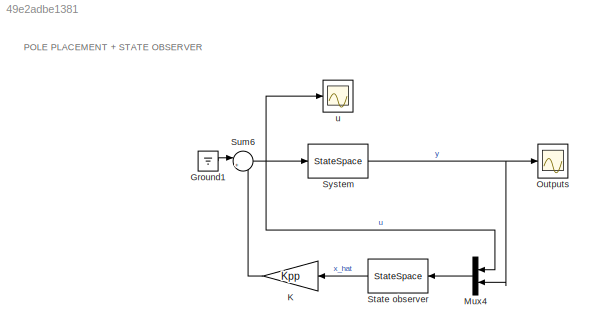
MODEL slx_49e2adbe1381
KIND model
CONFIG AbsTol = auto
CONFIG EnableMultiTasking = on
CONFIG FixedStep = auto
CONFIG MaxStep = auto
CONFIG MinStep = auto
CONFIG RelTol = 1e-3
CONFIG SampleTimeConstraint = Unconstrained
CONFIG SolverName = ode15s
CONFIG StartTime = 0.0
CONFIG StopTime = 30
BLOCK [Ground] Ground1
BLOCK [Gain] K
  Gain = Kpp
  Multiplication = Matrix(K*u) (u vector)
BLOCK [Mux] Mux4
  DisplayOption = bar
  Inputs = 2
BLOCK [Scope] Outputs
  Floating = off
  NumInputPorts = 1
  ScopeSpecificationString = Simulink.scopes.TimeScopeBlockCfg('CurrentConfiguration', extmgr.ConfigurationSet(extmgr.Configuration('Core','General UI',true),extmgr.Configuration('Core','Source UI',true),extmgr.Configuration('Sources','WiredSimulink',true,'DataLoggingVariableName','ScopeData2'),extmgr.Configuration('Visuals','Time Domain',true,'SerializedDisplays',{struct('MinYLimReal','-0.81581','MaxYLimReal','0.36914','YLab...<+2108ch>
BLOCK [StateSpace] State observer
  A = A_ob
  B = B_ob
  C = C_ob
  D = D_ob
  InitialCondition = 0
BLOCK [Sum] Sum6
  Inputs = |+-
BLOCK [StateSpace] System
  A = A
  B = B
  C = C
  D = D
  InitialCondition = x0
BLOCK [Scope] u
  Floating = off
  NumInputPorts = 1
  ScopeSpecificationString = Simulink.scopes.TimeScopeBlockCfg('CurrentConfiguration', extmgr.ConfigurationSet(extmgr.Configuration('Core','General UI',true),extmgr.Configuration('Core','Source UI',true),extmgr.Configuration('Sources','WiredSimulink',true,'DataLoggingVariableName','ScopeData1','DataLoggingSaveFormat','StructureWithTime','DataLoggingLimitDataPoints',true,'DataLoggingDecimation','1','DataLoggingDecimateData',tr...<+2027ch>
ANNOTATION (root): POLE PLACEMENT + STATE OBSERVER
LINE Ground1:1 -> Sum6:1
LINE K:1 -> Sum6:2
LINE Mux4:1 -> State observer:1
LINE State observer:1 -> K:1
NET Sum6:1 -> Mux4:1, System:1, u:1
NET System:1 -> Mux4:2, Outputs:1
note: NET lines group one-source signal fan-out (src -> all destinations, sorted); 1:1 wires keep LINE
